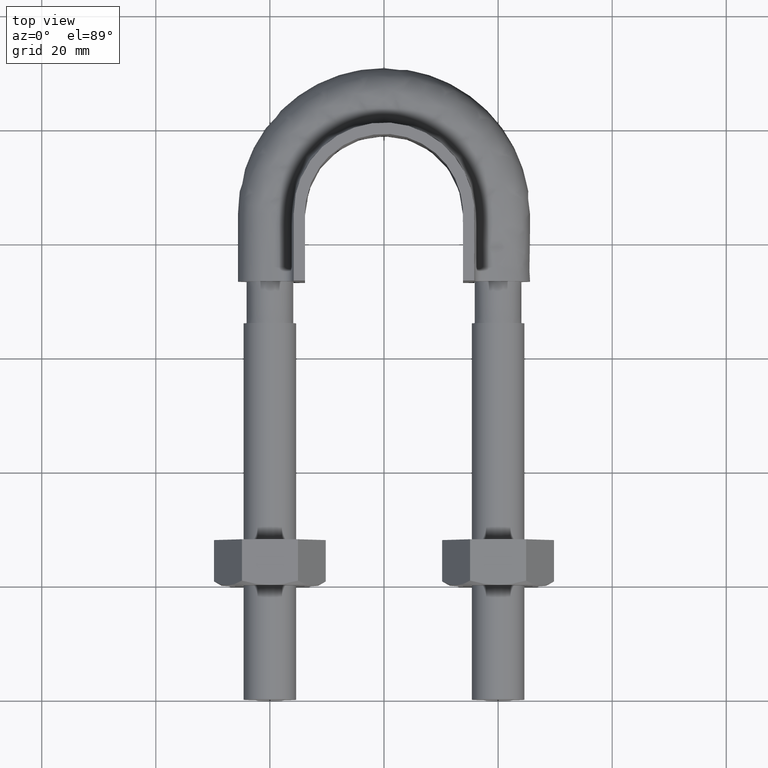
[diagram: clean part render]
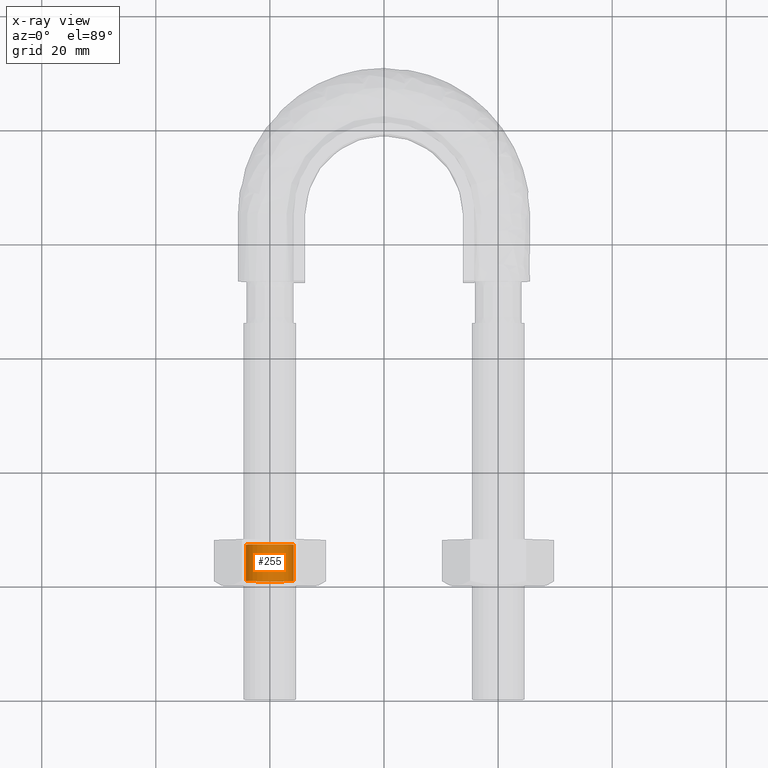
[diagram: x-ray — body ghosted, one internal face saturated and labeled with its STEP entity id]
A machine part, top view, then the same camera in x-ray: the body is ghosted and one INTERNAL B-rep face — a face not visible from any outside direction — is saturated and labeled: STEP entity #255.
In plain terms, the highlighted cylindrical surface (bore or boss wall) has radius 4.188 mm, axis along (-0, -1, -0).
Its self-contained STEP definition (entity closure, byte-faithful):
#255 = ADVANCED_FACE( '', ( #363, #364 ), #365, .F. );
#363 = FACE_OUTER_BOUND( '', #1221, .T. );
#364 = FACE_OUTER_BOUND( '', #1222, .T. );
#365 = CYLINDRICAL_SURFACE( '', #1223, 4.18800000000000 );
#1221 = EDGE_LOOP( '', ( #1552 ) );
#1222 = EDGE_LOOP( '', ( #1553 ) );
#1223 = AXIS2_PLACEMENT_3D( '', #1554, #1555, #1556 );
#1552 = ORIENTED_EDGE( '', *, *, #1806, .T. );
#1553 = ORIENTED_EDGE( '', *, *, #1805, .F. );
#1554 = CARTESIAN_POINT( '', ( -20.0000000000000, 27.9999999999975, 2.44921270764399E-016 ) );
#1555 = DIRECTION( '', ( -4.89842541528951E-016, -1.00000000000000, -6.12303176911188E-017 ) );
#1556 = DIRECTION( '', ( -0.866025403784371, 3.93600925972806E-016, 0.500000000000117 ) );
#1805 = EDGE_CURVE( '', #1977, #1977, #1978, .T. );
#1806 = EDGE_CURVE( '', #1979, #1979, #1980, .T. );
#1977 = VERTEX_POINT( '', #2441 );
#1978 = CIRCLE( '', #2442, 4.18800000000000 );
#1979 = VERTEX_POINT( '', #2443 );
#1980 = CIRCLE( '', #2444, 4.18800000000000 );
#2441 = CARTESIAN_POINT( '', ( -23.6269143910489, 20.8119999999998, 2.09400000000049 ) );
#2442 = AXIS2_PLACEMENT_3D( '', #2713, #2714, #2715 );
#2443 = CARTESIAN_POINT( '', ( -23.6269143910489, 27.1879999999978, 2.09400000000049 ) );
#2444 = AXIS2_PLACEMENT_3D( '', #2716, #2717, #2718 );
#2713 = CARTESIAN_POINT( '', ( -20.0000000000000, 20.8119999999998, -1.95202252799226E-016 ) );
#2714 = DIRECTION( '', ( 4.89842541528951E-016, 1.00000000000000, 6.12303176911188E-017 ) );
#2715 = DIRECTION( '', ( -0.866025403784371, 3.93600925972806E-016, 0.500000000000117 ) );
#2716 = CARTESIAN_POINT( '', ( -20.0000000000000, 27.1879999999978, 1.95202252799226E-016 ) );
#2717 = DIRECTION( '', ( 4.89842541528951E-016, 1.00000000000000, 6.12303176911188E-017 ) );
#2718 = DIRECTION( '', ( -0.866025403784371, 3.93600925972806E-016, 0.500000000000117 ) );